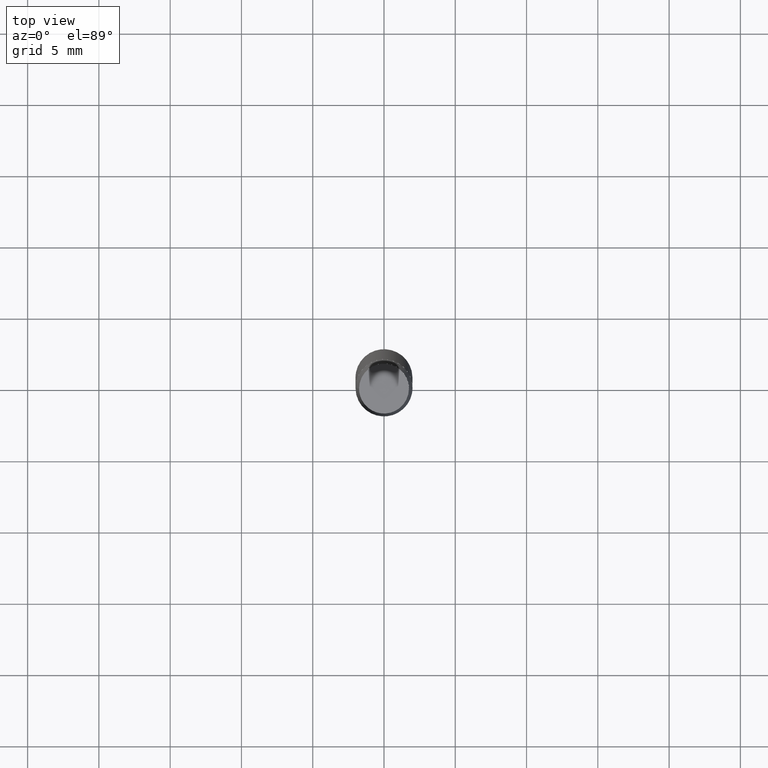
[diagram: clean part render]
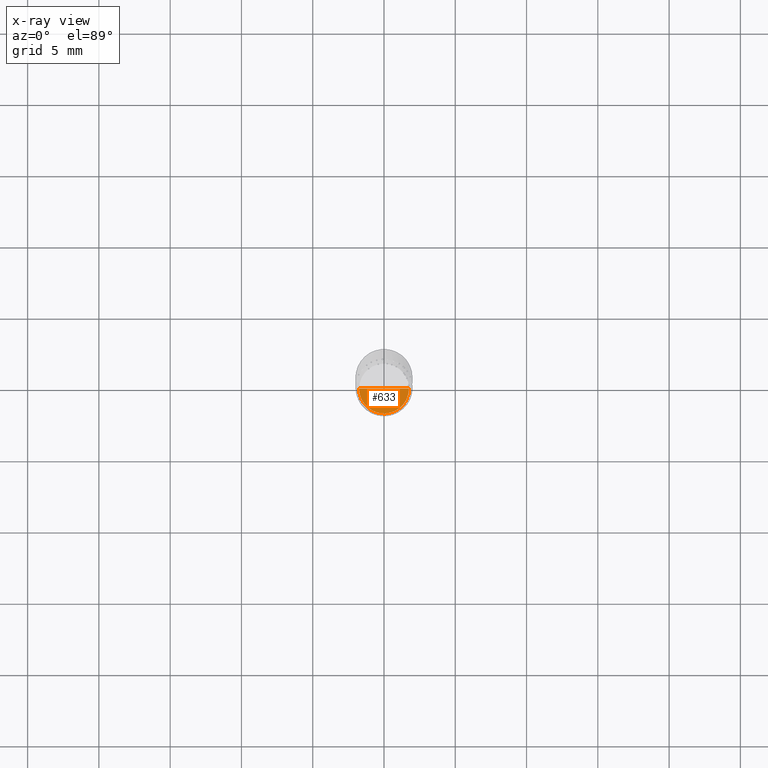
[diagram: x-ray — body ghosted, one internal face saturated and labeled with its STEP entity id]
A machine part, top view, then the same camera in x-ray: the body is ghosted and one INTERNAL B-rep face — a face not visible from any outside direction — is saturated and labeled: STEP entity #633.
In plain terms, the highlighted face is a freeform B-spline surface patch.
Its self-contained STEP definition (entity closure, byte-faithful):
#480=CARTESIAN_POINT('',(1.75,0.0,-3.0));
#484=CARTESIAN_POINT('',(-1.75,0.0,-3.0));
#485=CARTESIAN_POINT('',(0.0,0.0,-3.0));
#488=CARTESIAN_POINT('',(-1.75,-1.75,-3.0));
#489=CARTESIAN_POINT('',(0.0,-1.75,-3.0));
#490=CARTESIAN_POINT('',(1.75,-1.75,-3.0));
#618=(
BOUNDED_SURFACE()
B_SPLINE_SURFACE(1,2,(
(#484,#488,#489,#490,#480),
(#485,#485,#485,#485,#485)
), .UNSPECIFIED.,.F.,.F.,.F.)
B_SPLINE_SURFACE_WITH_KNOTS((2,2),(3,2,3),(
0.0,1.0),(
0.0,0.5,1.0), .UNSPECIFIED.)
GEOMETRIC_REPRESENTATION_ITEM()
RATIONAL_B_SPLINE_SURFACE(((1.0,0.707106781187,1.0,0.707106781187,1.0),
(1.0,0.707106781187,1.0,0.707106781187,1.0)
))
REPRESENTATION_ITEM('')
SURFACE()
);
#619=(
BOUNDED_CURVE()
B_SPLINE_CURVE(2,(#480,#490,#489,#488,#484),.UNSPECIFIED.,.F.,.F.)
B_SPLINE_CURVE_WITH_KNOTS((3,2,3),
(0.0,0.5,1.0),.UNSPECIFIED.)
CURVE()
GEOMETRIC_REPRESENTATION_ITEM()
RATIONAL_B_SPLINE_CURVE((1.0,0.707106781187,1.0,0.707106781187,1.0))
REPRESENTATION_ITEM('')
);
#620=(
BOUNDED_CURVE()
B_SPLINE_CURVE(1,(#484,#485),.UNSPECIFIED.,.F.,.F.)
B_SPLINE_CURVE_WITH_KNOTS((2,2),
(0.0,1.0),.UNSPECIFIED.)
CURVE()
GEOMETRIC_REPRESENTATION_ITEM()
RATIONAL_B_SPLINE_CURVE((1.0,1.0))
REPRESENTATION_ITEM('')
);
#621=(
BOUNDED_CURVE()
B_SPLINE_CURVE(1,(#485,#480),.UNSPECIFIED.,.F.,.F.)
B_SPLINE_CURVE_WITH_KNOTS((2,2),
(0.0,1.0),.UNSPECIFIED.)
CURVE()
GEOMETRIC_REPRESENTATION_ITEM()
RATIONAL_B_SPLINE_CURVE((1.0,1.0))
REPRESENTATION_ITEM('')
);
#622=VERTEX_POINT('',#480);
#623=VERTEX_POINT('',#484);
#624=VERTEX_POINT('',#485);
#625=EDGE_CURVE('',#622,#623,#619,.T.);
#626=EDGE_CURVE('',#623,#624,#620,.T.);
#627=EDGE_CURVE('',#624,#622,#621,.T.);
#628=ORIENTED_EDGE('',*,*,#625,.T.);
#629=ORIENTED_EDGE('',*,*,#626,.T.);
#630=ORIENTED_EDGE('',*,*,#627,.T.);
#631=EDGE_LOOP('',(#628,#629,#630));
#632=FACE_OUTER_BOUND('',#631,.T.);
#633=ADVANCED_FACE('',(#632),#618,.T.);